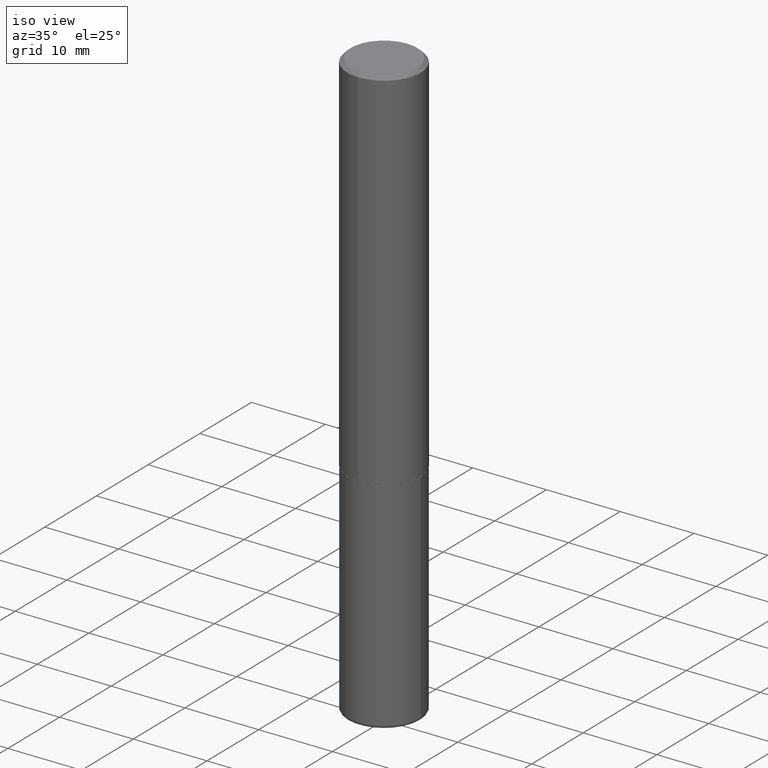
[diagram: clean part render]
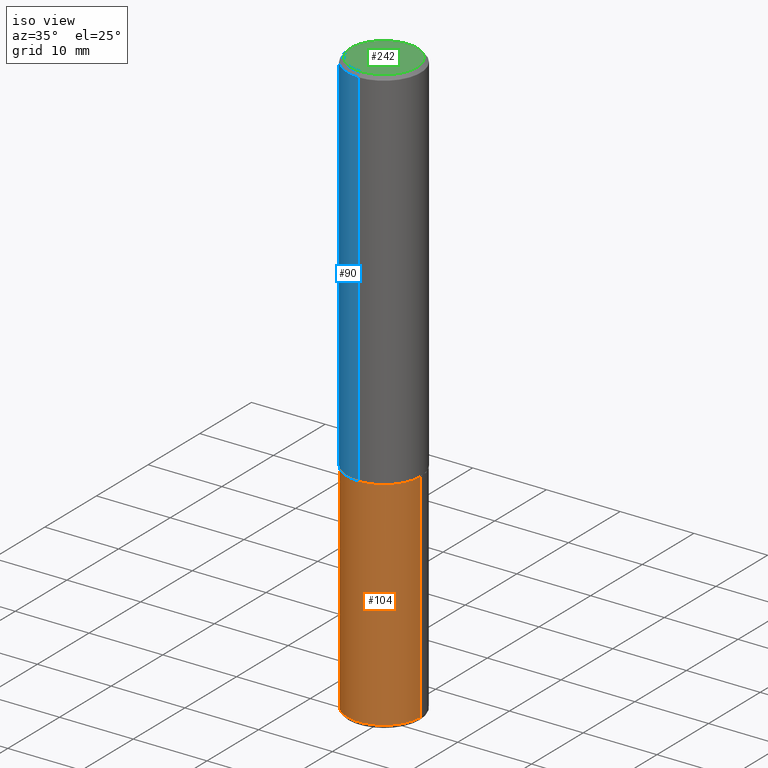
[diagram: same view with three faces highlighted in distinct colors, each labeled with its STEP entity id]
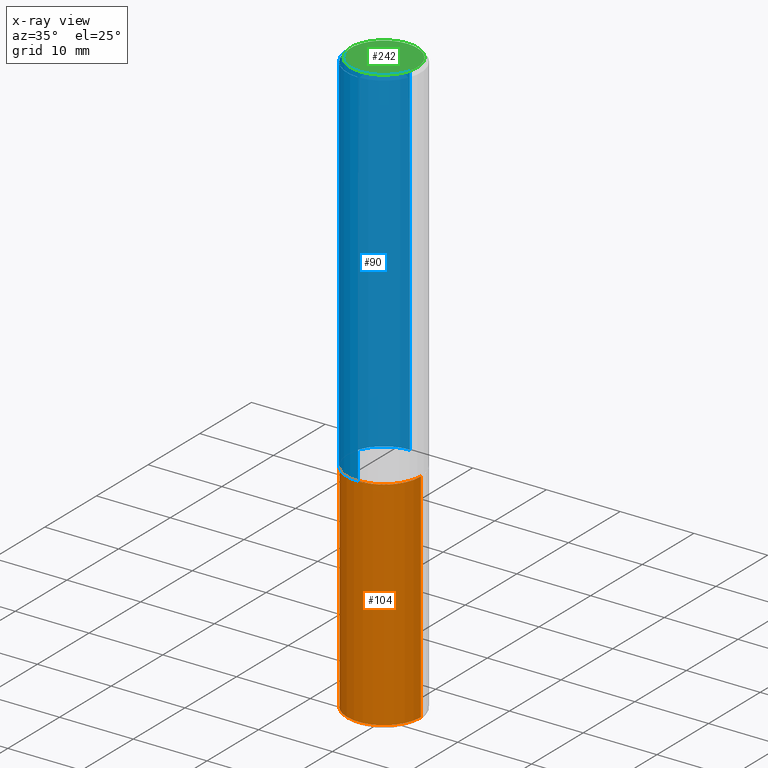
[diagram: x-ray of the same camera — body ghosted, the three highlighted faces saturated]
A machine part, iso view with three faces highlighted in distinct colors.
The next image is the same camera in x-ray (body ghosted, the three faces saturated) — at least one of them is partly hidden behind the body in this view.
Their STEP definitions:

[orange] entity #104 — the highlighted cylindrical surface (partial cylindrical patch) has radius 5 mm, axis along (-0, 0, 1).
#7 = CARTESIAN_POINT ( 'NONE',  ( 0.000000000000000000, 0.000000000000000000, 0.000000000000000000 ) ) ;
#20 = CARTESIAN_POINT ( 'NONE',  ( 0.1968499999999999694, -1.374596203102541411E-15, 9.598753983154298056E-30 ) ) ;
#72 = CARTESIAN_POINT ( 'NONE',  ( 4.813905344975440714E-29, -6.872981015512730918E-15, -1.968499999999999694 ) ) ;
#88 = VERTEX_POINT ( 'NONE', #188 ) ;
#104 = ADVANCED_FACE ( 'NONE', ( #235 ), #332, .T. ) ;
#107 = CIRCLE ( 'NONE', #147, 0.1968500000000000250 ) ;
#113 = CARTESIAN_POINT ( 'NONE',  ( -0.1968499999999999694, 1.398703375343756999E-15, -9.682923725166782276E-30 ) ) ;
#128 = EDGE_LOOP ( 'NONE', ( #254, #331, #230, #342 ) ) ;
#131 = DIRECTION ( 'NONE',  ( 1.000000000000000000, -6.982962677686269866E-15, 0.000000000000000000 ) ) ;
#134 = VECTOR ( 'NONE', #341, 39.37007874015748143 ) ;
#136 = DIRECTION ( 'NONE',  ( -2.445468806185136597E-29, 3.491481338843145583E-15, 1.000000000000000000 ) ) ;
#147 = AXIS2_PLACEMENT_3D ( 'NONE', #72, #169, #297 ) ;
#165 = EDGE_CURVE ( 'NONE', #245, #314, #107, .T. ) ;
#169 = DIRECTION ( 'NONE',  ( -2.445468806185136597E-29, 3.491481338843145583E-15, 1.000000000000000000 ) ) ;
#181 = LINE ( 'NONE', #20, #392 ) ;
#188 = CARTESIAN_POINT ( 'NONE',  ( -0.1968499999999999417, -9.529284067101404126E-15, -3.129900000000000571 ) ) ;
#192 = AXIS2_PLACEMENT_3D ( 'NONE', #321, #136, #131 ) ;
#196 = CARTESIAN_POINT ( 'NONE',  ( -0.1968500000000000250, -7.501780853635190206E-15, -1.968499999999999694 ) ) ;
#207 = EDGE_CURVE ( 'NONE', #88, #210, #274, .T. ) ;
#210 = VERTEX_POINT ( 'NONE', #401 ) ;
#230 = ORIENTED_EDGE ( 'NONE', *, *, #393, .T. ) ;
#235 = FACE_OUTER_BOUND ( 'NONE', #128, .T. ) ;
#236 = DIRECTION ( 'NONE',  ( 1.000000000000000000, -6.982962677686266711E-15, 4.876176775795935793E-29 ) ) ;
#245 = VERTEX_POINT ( 'NONE', #196 ) ;
#254 = ORIENTED_EDGE ( 'NONE', *, *, #388, .F. ) ;
#266 = DIRECTION ( 'NONE',  ( -2.445468806185136597E-29, 3.491481338843145583E-15, 1.000000000000000000 ) ) ;
#274 = CIRCLE ( 'NONE', #192, 0.1968499999999999694 ) ;
#297 = DIRECTION ( 'NONE',  ( 1.000000000000000000, -6.982962677686267499E-15, 0.000000000000000000 ) ) ;
#314 = VERTEX_POINT ( 'NONE', #407 ) ;
#321 = CARTESIAN_POINT ( 'NONE',  ( 7.654072816478859974E-29, -1.092798744244516270E-14, -3.129900000000000571 ) ) ;
#331 = ORIENTED_EDGE ( 'NONE', *, *, #207, .T. ) ;
#332 = CYLINDRICAL_SURFACE ( 'NONE', #355, 0.1968499999999999694 ) ;
#341 = DIRECTION ( 'NONE',  ( -2.445468806185136877E-29, 3.491481338843145188E-15, 1.000000000000000000 ) ) ;
#342 = ORIENTED_EDGE ( 'NONE', *, *, #165, .F. ) ;
#355 = AXIS2_PLACEMENT_3D ( 'NONE', #7, #266, #236 ) ;
#386 = DIRECTION ( 'NONE',  ( -2.445468806185136877E-29, 3.491481338843145188E-15, 1.000000000000000000 ) ) ;
#388 = EDGE_CURVE ( 'NONE', #88, #245, #399, .T. ) ;
#392 = VECTOR ( 'NONE', #386, 39.37007874015748143 ) ;
#393 = EDGE_CURVE ( 'NONE', #210, #314, #181, .T. ) ;
#399 = LINE ( 'NONE', #113, #134 ) ;
#401 = CARTESIAN_POINT ( 'NONE',  ( 0.1968499999999999417, -1.230258364554770273E-14, -3.129900000000000571 ) ) ;
#407 = CARTESIAN_POINT ( 'NONE',  ( 0.1968500000000000250, -8.247577218615273316E-15, -1.968499999999999694 ) ) ;

[blue] entity #90 — the highlighted cylindrical surface (partial cylindrical patch) has radius 5 mm, axis along (-0, 0, 1).
#4 = EDGE_CURVE ( 'NONE', #362, #344, #64, .T. ) ;
#12 = ORIENTED_EDGE ( 'NONE', *, *, #149, .F. ) ;
#21 = CARTESIAN_POINT ( 'NONE',  ( -1.350489030861325626E-15, -0.1968500000000001082, -0.01999999999999935510 ) ) ;
#52 = EDGE_LOOP ( 'NONE', ( #347, #317, #66, #12 ) ) ;
#57 = EDGE_CURVE ( 'NONE', #377, #362, #279, .T. ) ;
#61 = VERTEX_POINT ( 'NONE', #65 ) ;
#64 = LINE ( 'NONE', #135, #269 ) ;
#65 = CARTESIAN_POINT ( 'NONE',  ( 1.374596203102542200E-15, 0.1968499999999999694, -0.02000000000000072900 ) ) ;
#66 = ORIENTED_EDGE ( 'NONE', *, *, #4, .T. ) ;
#74 = AXIS2_PLACEMENT_3D ( 'NONE', #352, #256, #350 ) ;
#81 = LINE ( 'NONE', #315, #82 ) ;
#82 = VECTOR ( 'NONE', #182, 39.37007874015748143 ) ;
#90 = ADVANCED_FACE ( 'NONE', ( #155 ), #103, .T. ) ;
#103 = CYLINDRICAL_SURFACE ( 'NONE', #391, 0.1968500000000001360 ) ;
#111 = CARTESIAN_POINT ( 'NONE',  ( 4.890537682593712927E-31, -6.983535399888942699E-17, -0.02000000000000004205 ) ) ;
#112 = CARTESIAN_POINT ( 'NONE',  ( 1.398703375343782440E-15, 0.1968499999999933914, -1.967500000000000471 ) ) ;
#117 = CARTESIAN_POINT ( 'NONE',  ( -1.374596203102495065E-15, -0.1968500000000071026, -1.967499999999998916 ) ) ;
#135 = CARTESIAN_POINT ( 'NONE',  ( -1.374596203102542397E-15, -0.1968500000000001360, 6.873544717340683232E-16 ) ) ;
#143 = DIRECTION ( 'NONE',  ( -2.445268841296851437E-29, 3.491767699944464545E-15, 1.000000000000000000 ) ) ;
#149 = EDGE_CURVE ( 'NONE', #61, #344, #415, .T. ) ;
#155 = FACE_OUTER_BOUND ( 'NONE', #52, .T. ) ;
#164 = DIRECTION ( 'NONE',  ( -2.445268841296851437E-29, 3.491767699944464940E-15, 1.000000000000000000 ) ) ;
#172 = CARTESIAN_POINT ( 'NONE',  ( 0.000000000000000000, 0.000000000000000000, 0.000000000000000000 ) ) ;
#182 = DIRECTION ( 'NONE',  ( -2.445268841296851437E-29, 3.491767699944464940E-15, 1.000000000000000000 ) ) ;
#199 = DIRECTION ( 'NONE',  ( -2.445268841296851437E-29, 3.491767699944464545E-15, 1.000000000000000000 ) ) ;
#256 = DIRECTION ( 'NONE',  ( -2.445268841296851437E-29, 3.491767699944464545E-15, 1.000000000000000000 ) ) ;
#269 = VECTOR ( 'NONE', #164, 39.37007874015748143 ) ;
#279 = CIRCLE ( 'NONE', #74, 0.1968500000000002470 ) ;
#292 = DIRECTION ( 'NONE',  ( -6.982962677686265922E-15, -1.000000000000000000, 3.491767699944464545E-15 ) ) ;
#302 = EDGE_CURVE ( 'NONE', #377, #61, #81, .T. ) ;
#315 = CARTESIAN_POINT ( 'NONE',  ( 1.398703375343757985E-15, 0.1968500000000001360, -6.873544717340683232E-16 ) ) ;
#317 = ORIENTED_EDGE ( 'NONE', *, *, #57, .T. ) ;
#344 = VERTEX_POINT ( 'NONE', #21 ) ;
#347 = ORIENTED_EDGE ( 'NONE', *, *, #302, .F. ) ;
#350 = DIRECTION ( 'NONE',  ( -6.982962677686265922E-15, -1.000000000000000000, 4.163344669033670112E-15 ) ) ;
#352 = CARTESIAN_POINT ( 'NONE',  ( 4.811066445251554069E-29, -6.870052949640732965E-15, -1.967499999999999805 ) ) ;
#353 = DIRECTION ( 'NONE',  ( -6.982962677686265133E-15, -1.000000000000000000, 3.491137977679279029E-15 ) ) ;
#362 = VERTEX_POINT ( 'NONE', #117 ) ;
#363 = AXIS2_PLACEMENT_3D ( 'NONE', #111, #199, #353 ) ;
#377 = VERTEX_POINT ( 'NONE', #112 ) ;
#391 = AXIS2_PLACEMENT_3D ( 'NONE', #172, #143, #292 ) ;
#415 = CIRCLE ( 'NONE', #363, 0.1968500000000000527 ) ;

[green] entity #242 — the highlighted planar face has unit normal (0, -0, -1).
#2 = CIRCLE ( 'NONE', #243, 0.1768499999999998407 ) ;
#14 = EDGE_CURVE ( 'NONE', #250, #78, #208, .T. ) ;
#27 = CARTESIAN_POINT ( 'NONE',  ( 1.304766576325678705E-15, 0.1768499999999998407, -3.955058252891884244E-16 ) ) ;
#28 = CARTESIAN_POINT ( 'NONE',  ( 1.234936949548815012E-15, 0.1768499999999998407, -5.065124715121833152E-16 ) ) ;
#29 = CARTESIAN_POINT ( 'NONE',  ( -5.428821863719041386E-45, 7.752188435212310874E-31, 2.220132924459896583E-16 ) ) ;
#62 = CARTESIAN_POINT ( 'NONE',  ( -5.428821863719041386E-45, 7.752188435212310874E-31, 2.220132924459896583E-16 ) ) ;
#78 = VERTEX_POINT ( 'NONE', #27 ) ;
#93 = DIRECTION ( 'NONE',  ( -2.445268841296851437E-29, 3.491767699944464545E-15, 1.000000000000000000 ) ) ;
#110 = AXIS2_PLACEMENT_3D ( 'NONE', #28, #127, #262 ) ;
#127 = DIRECTION ( 'NONE',  ( 2.445268841296850876E-29, -3.491767699944464940E-15, -1.000000000000000000 ) ) ;
#156 = DIRECTION ( 'NONE',  ( -2.445268841296851437E-29, 3.491767699944464545E-15, 1.000000000000000000 ) ) ;
#157 = PLANE ( 'NONE',  #110 ) ;
#208 = CIRCLE ( 'NONE', #232, 0.1768499999999998407 ) ;
#212 = EDGE_CURVE ( 'NONE', #78, #250, #2, .T. ) ;
#232 = AXIS2_PLACEMENT_3D ( 'NONE', #29, #156, #406 ) ;
#242 = ADVANCED_FACE ( 'NONE', ( #291 ), #157, .F. ) ;
#243 = AXIS2_PLACEMENT_3D ( 'NONE', #62, #93, #374 ) ;
#250 = VERTEX_POINT ( 'NONE', #385 ) ;
#262 = DIRECTION ( 'NONE',  ( 6.982962677686265922E-15, 1.000000000000000000, -3.491767699944464940E-15 ) ) ;
#291 = FACE_OUTER_BOUND ( 'NONE', #336, .T. ) ;
#336 = EDGE_LOOP ( 'NONE', ( #383, #396 ) ) ;
#374 = DIRECTION ( 'NONE',  ( -6.982962677686265922E-15, -1.000000000000000000, 3.491767699944464940E-15 ) ) ;
#383 = ORIENTED_EDGE ( 'NONE', *, *, #212, .T. ) ;
#385 = CARTESIAN_POINT ( 'NONE',  ( -1.281884050883609900E-15, -0.1768499999999998407, 8.395324101811677409E-16 ) ) ;
#396 = ORIENTED_EDGE ( 'NONE', *, *, #14, .T. ) ;
#406 = DIRECTION ( 'NONE',  ( -6.982962677686265922E-15, -1.000000000000000000, 3.491767699944464940E-15 ) ) ;